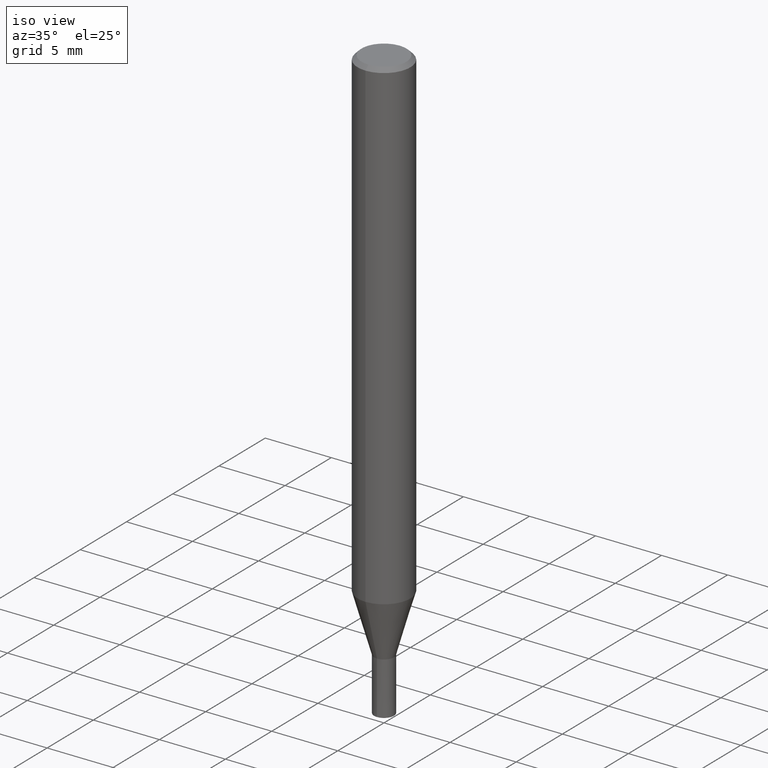
[diagram: clean part render]
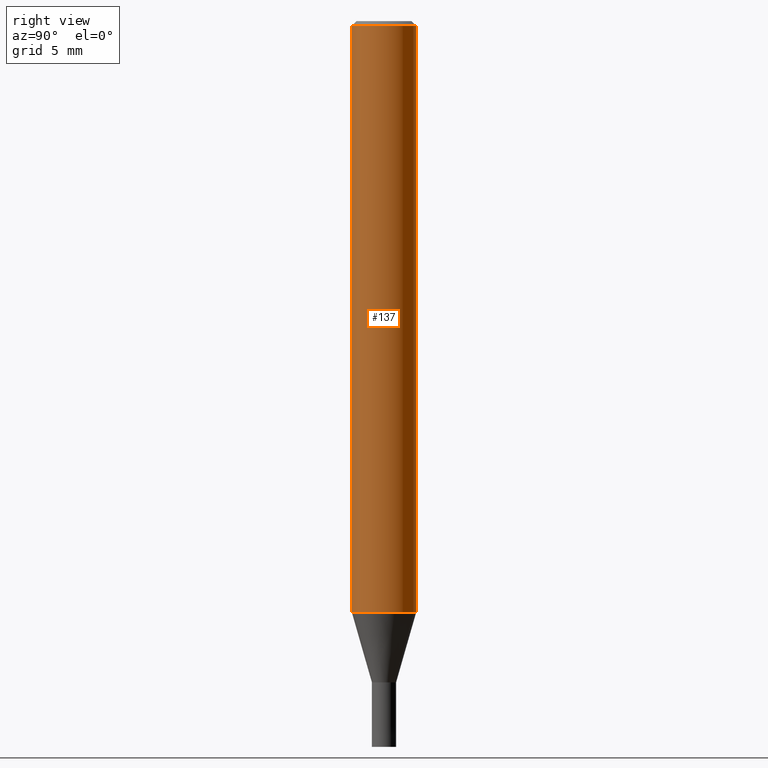
[diagram: tour spotlight — one face highlighted and labeled with its STEP entity id]
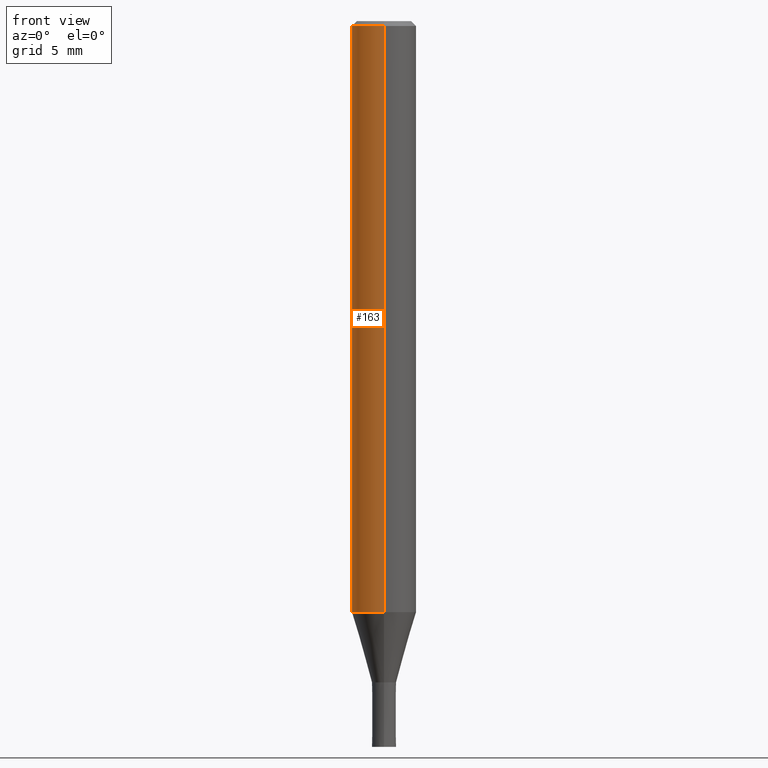
[diagram: tour spotlight — one face highlighted and labeled with its STEP entity id]
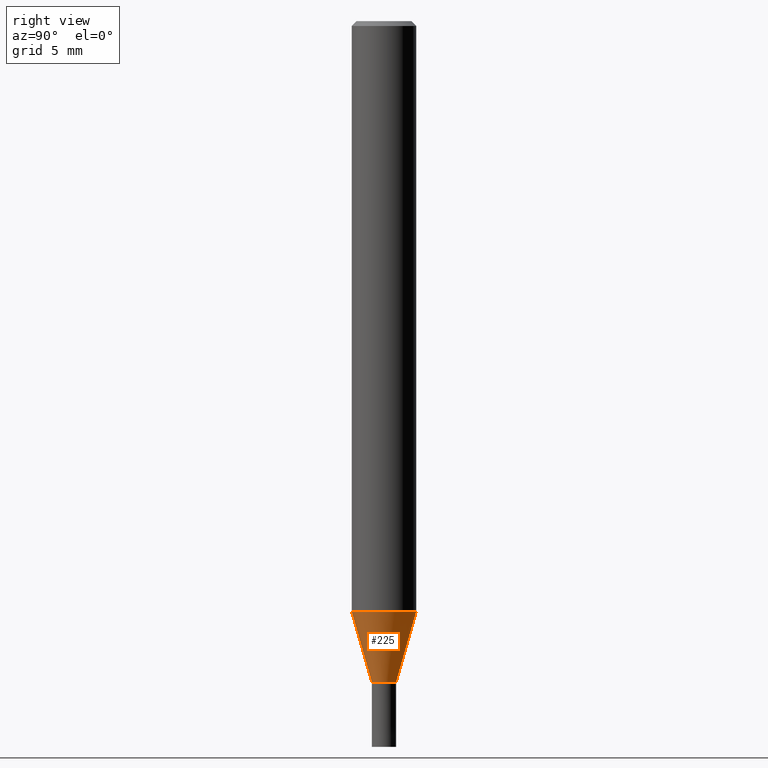
[diagram: tour spotlight — one face highlighted and labeled with its STEP entity id]
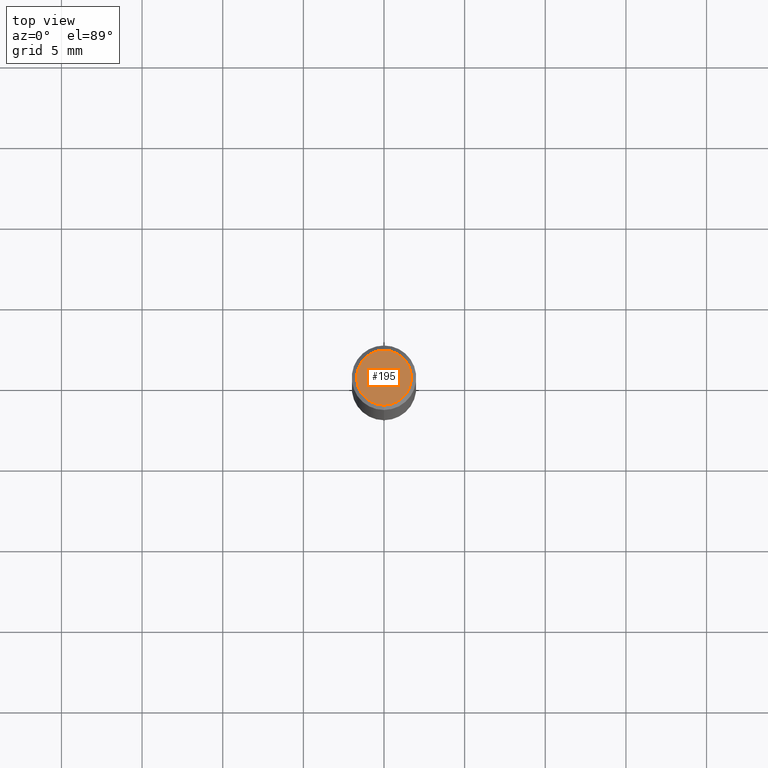
[diagram: tour spotlight — one face highlighted and labeled with its STEP entity id]
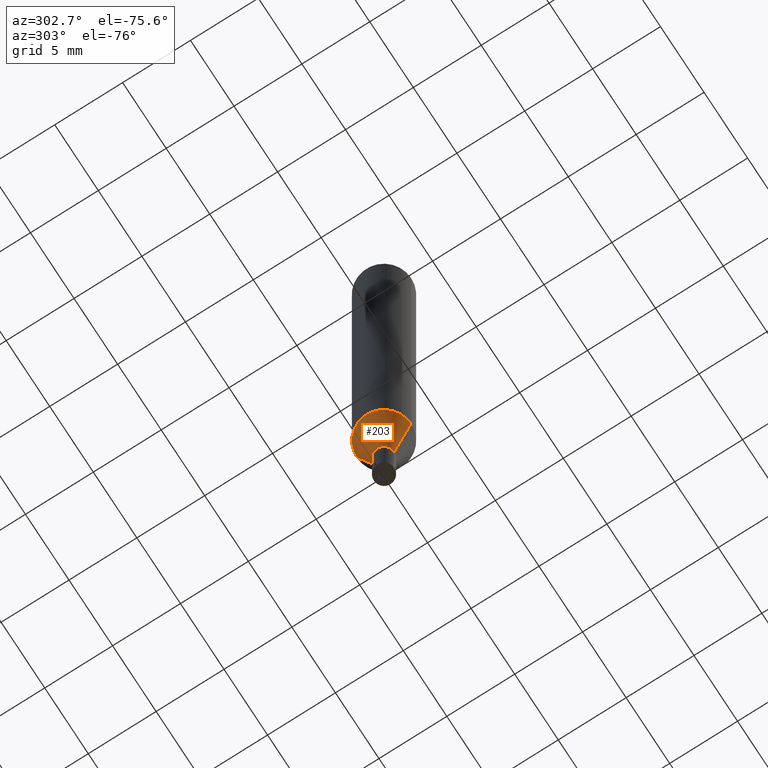
[diagram: tour spotlight — one face highlighted and labeled with its STEP entity id]
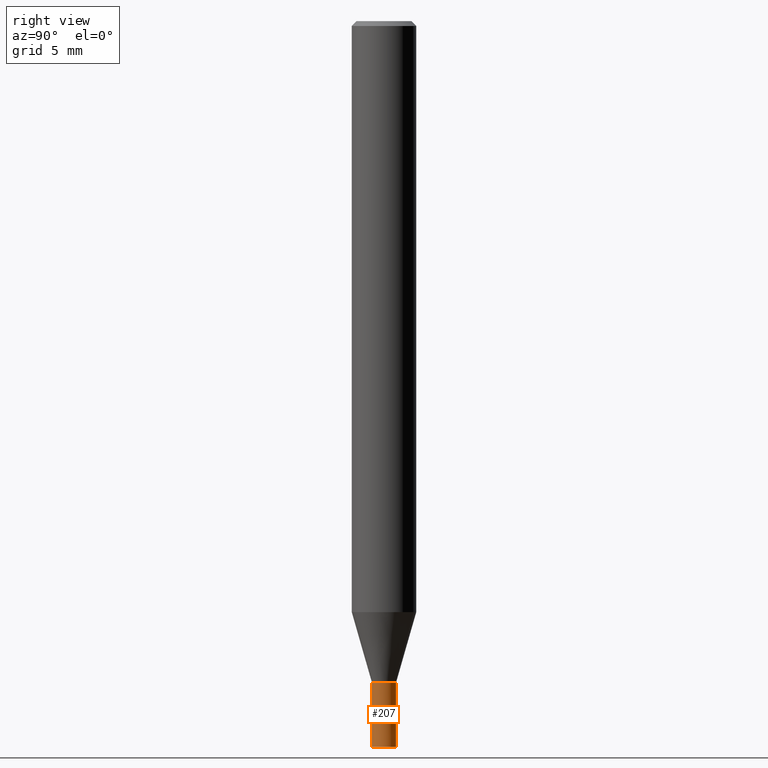
[diagram: tour spotlight — one face highlighted and labeled with its STEP entity id]
A machine part: a face-by-face anatomy tour. The part has 18 B-rep faces; the first image is the clean iso view, then the 6 largest visible faces are spotlighted one at a time (largest first), each with its STEP entity span.

Face 1 — right view, entity #137. In plain terms, the highlighted cylindrical surface (edge-blend (fillet) strip) has radius 2 mm, axis along (-0, -0, 1).
Definition (entity closure, byte-faithful):
#115=VERTEX_POINT('',#286);
#119=VERTEX_POINT('',#290);
#135=VERTEX_POINT('',#311);
#137=ADVANCED_FACE('',(#313),#314,.T.);
#143=EDGE_CURVE('',#135,#179,#321,.T.);
#169=EDGE_CURVE('',#119,#135,#351,.T.);
#179=VERTEX_POINT('',#362);
#183=EDGE_CURVE('',#119,#115,#366,.T.);
#191=EDGE_CURVE('',#179,#115,#374,.T.);
#286=CARTESIAN_POINT('',(2.44921270764475E-016,-2.0,-0.299999999999997));
#290=CARTESIAN_POINT('',(0.0,2.0,-0.299999999999997));
#311=CARTESIAN_POINT('',(0.0,2.0,-36.641));
#313=FACE_OUTER_BOUND('',#505,.T.);
#314=CYLINDRICAL_SURFACE('',#506,2.0);
#321=CIRCLE('',#515,2.0);
#351=LINE('',#553,#554);
#362=CARTESIAN_POINT('',(2.44921270764475E-016,-2.0,-36.641));
#366=CIRCLE('',#575,2.0);
#374=LINE('',#585,#586);
#505=EDGE_LOOP('',(#725,#726,#727,#728));
#506=AXIS2_PLACEMENT_3D('',#729,#730,#731);
#515=AXIS2_PLACEMENT_3D('',#743,#744,#745);
#553=CARTESIAN_POINT('',(-2.44921270764475E-016,2.0,-18.4705));
#554=VECTOR('',#780,1.0);
#575=AXIS2_PLACEMENT_3D('',#799,#800,#801);
#585=CARTESIAN_POINT('',(2.44921270764475E-016,-2.0,-18.4705));
#586=VECTOR('',#805,1.0);
#725=ORIENTED_EDGE('',*,*,#169,.F.);
#726=ORIENTED_EDGE('',*,*,#183,.T.);
#727=ORIENTED_EDGE('',*,*,#191,.F.);
#728=ORIENTED_EDGE('',*,*,#143,.F.);
#729=CARTESIAN_POINT('',(0.0,0.0,-18.4705));
#730=DIRECTION('',(-0.0,-0.0,1.0));
#731=DIRECTION('',(0.0,1.0,0.0));
#743=CARTESIAN_POINT('',(0.0,0.0,-36.641));
#744=DIRECTION('',(0.0,0.0,-1.0));
#745=DIRECTION('',(0.0,1.0,0.0));
#780=DIRECTION('',(0.0,0.0,-1.0));
#799=CARTESIAN_POINT('',(0.0,0.0,-0.299999999999997));
#800=DIRECTION('',(0.0,0.0,-1.0));
#801=DIRECTION('',(0.0,1.0,0.0));
#805=DIRECTION('',(-0.0,-0.0,1.0));

Face 2 — front view, entity #163. In plain terms, the highlighted cylindrical surface (edge-blend (fillet) strip) has radius 2 mm, axis along (-0, -0, 1).
Definition (entity closure, byte-faithful):
#115=VERTEX_POINT('',#286);
#119=VERTEX_POINT('',#290);
#135=VERTEX_POINT('',#311);
#147=EDGE_CURVE('',#179,#135,#325,.T.);
#163=ADVANCED_FACE('',(#343),#344,.T.);
#169=EDGE_CURVE('',#119,#135,#351,.T.);
#179=VERTEX_POINT('',#362);
#191=EDGE_CURVE('',#179,#115,#374,.T.);
#193=EDGE_CURVE('',#115,#119,#376,.T.);
#286=CARTESIAN_POINT('',(2.44921270764475E-016,-2.0,-0.299999999999997));
#290=CARTESIAN_POINT('',(0.0,2.0,-0.299999999999997));
#311=CARTESIAN_POINT('',(0.0,2.0,-36.641));
#325=CIRCLE('',#520,2.0);
#343=FACE_OUTER_BOUND('',#542,.T.);
#344=CYLINDRICAL_SURFACE('',#543,2.0);
#351=LINE('',#553,#554);
#362=CARTESIAN_POINT('',(2.44921270764475E-016,-2.0,-36.641));
#374=LINE('',#585,#586);
#376=CIRCLE('',#589,2.0);
#520=AXIS2_PLACEMENT_3D('',#746,#747,#748);
#542=EDGE_LOOP('',(#764,#765,#766,#767));
#543=AXIS2_PLACEMENT_3D('',#768,#769,#770);
#553=CARTESIAN_POINT('',(-2.44921270764475E-016,2.0,-18.4705));
#554=VECTOR('',#780,1.0);
#585=CARTESIAN_POINT('',(2.44921270764475E-016,-2.0,-18.4705));
#586=VECTOR('',#805,1.0);
#589=AXIS2_PLACEMENT_3D('',#806,#807,#808);
#746=CARTESIAN_POINT('',(0.0,0.0,-36.641));
#747=DIRECTION('',(0.0,0.0,-1.0));
#748=DIRECTION('',(0.0,1.0,0.0));
#764=ORIENTED_EDGE('',*,*,#169,.T.);
#765=ORIENTED_EDGE('',*,*,#147,.F.);
#766=ORIENTED_EDGE('',*,*,#191,.T.);
#767=ORIENTED_EDGE('',*,*,#193,.T.);
#768=CARTESIAN_POINT('',(0.0,0.0,-18.4705));
#769=DIRECTION('',(-0.0,-0.0,1.0));
#770=DIRECTION('',(0.0,1.0,0.0));
#780=DIRECTION('',(0.0,0.0,-1.0));
#805=DIRECTION('',(-0.0,-0.0,1.0));
#806=CARTESIAN_POINT('',(0.0,0.0,-0.299999999999997));
#807=DIRECTION('',(0.0,0.0,-1.0));
#808=DIRECTION('',(0.0,1.0,0.0));

Face 3 — right view, entity #225. In plain terms, the highlighted conical surface has half-angle 16.001 deg.
Definition (entity closure, byte-faithful):
#145=VERTEX_POINT('',#323);
#161=VERTEX_POINT('',#341);
#165=EDGE_CURVE('',#161,#241,#346,.T.);
#217=EDGE_CURVE('',#145,#245,#403,.T.);
#219=EDGE_CURVE('',#245,#161,#405,.T.);
#225=ADVANCED_FACE('',(#411),#412,.T.);
#241=VERTEX_POINT('',#431);
#245=VERTEX_POINT('',#435);
#257=EDGE_CURVE('',#145,#241,#450,.T.);
#323=CARTESIAN_POINT('',(0.0,1.99995,-36.641));
#341=CARTESIAN_POINT('',(9.18393535049092E-017,-0.74995,-41.0));
#346=LINE('',#546,#547);
#403=LINE('',#619,#620);
#405=CIRCLE('',#623,0.74995);
#411=FACE_OUTER_BOUND('',#631,.T.);
#412=CONICAL_SURFACE('',#632,1.37495,0.279268973819818);
#431=CARTESIAN_POINT('',(2.44915147732706E-016,-1.99995,-36.641));
#435=CARTESIAN_POINT('',(0.0,0.74995,-41.0));
#450=CIRCLE('',#677,1.99995);
#546=CARTESIAN_POINT('',(1.68377250618808E-016,-1.37495,-38.8205));
#547=VECTOR('',#771,1.0);
#619=CARTESIAN_POINT('',(-1.68377250618808E-016,1.37495,-38.8205));
#620=VECTOR('',#841,1.0);
#623=AXIS2_PLACEMENT_3D('',#842,#843,#844);
#631=EDGE_LOOP('',(#847,#848,#849,#850));
#632=AXIS2_PLACEMENT_3D('',#851,#852,#853);
#677=AXIS2_PLACEMENT_3D('',#899,#900,#901);
#771=DIRECTION('',(3.375664374138E-017,-0.27565301809855,0.961257204713265));
#841=DIRECTION('',(3.375664374138E-017,-0.27565301809855,-0.961257204713265));
#842=CARTESIAN_POINT('',(0.0,0.0,-41.0));
#843=DIRECTION('',(0.0,0.0,-1.0));
#844=DIRECTION('',(0.0,1.0,0.0));
#847=ORIENTED_EDGE('',*,*,#217,.F.);
#848=ORIENTED_EDGE('',*,*,#257,.T.);
#849=ORIENTED_EDGE('',*,*,#165,.F.);
#850=ORIENTED_EDGE('',*,*,#219,.F.);
#851=CARTESIAN_POINT('',(0.0,0.0,-38.8205));
#852=DIRECTION('',(-0.0,-0.0,1.0));
#853=DIRECTION('',(0.0,1.0,0.0));
#899=CARTESIAN_POINT('',(0.0,0.0,-36.641));
#900=DIRECTION('',(0.0,0.0,-1.0));
#901=DIRECTION('',(0.0,1.0,0.0));

Face 4 — top view, entity #195. In plain terms, the highlighted planar face has unit normal (-0, 0, 1).
Definition (entity closure, byte-faithful):
#127=VERTEX_POINT('',#300);
#173=EDGE_CURVE('',#127,#251,#355,.T.);
#195=ADVANCED_FACE('',(#378),#379,.T.);
#215=EDGE_CURVE('',#251,#127,#401,.T.);
#251=VERTEX_POINT('',#444);
#300=CARTESIAN_POINT('',(0.0,1.7,0.0));
#355=CIRCLE('',#560,1.7);
#378=FACE_OUTER_BOUND('',#591,.T.);
#379=PLANE('',#592);
#401=CIRCLE('',#616,1.7);
#444=CARTESIAN_POINT('',(2.08183080149804E-016,-1.7,0.0));
#560=AXIS2_PLACEMENT_3D('',#784,#785,#786);
#591=EDGE_LOOP('',(#810,#811));
#592=AXIS2_PLACEMENT_3D('',#812,#813,#814);
#616=AXIS2_PLACEMENT_3D('',#838,#839,#840);
#784=CARTESIAN_POINT('',(0.0,0.0,0.0));
#785=DIRECTION('',(0.0,0.0,-1.0));
#786=DIRECTION('',(0.0,1.0,0.0));
#810=ORIENTED_EDGE('',*,*,#173,.F.);
#811=ORIENTED_EDGE('',*,*,#215,.F.);
#812=CARTESIAN_POINT('',(0.0,0.85,0.0));
#813=DIRECTION('',(-0.0,0.0,1.0));
#814=DIRECTION('',(0.0,-1.0,0.0));
#838=CARTESIAN_POINT('',(0.0,0.0,0.0));
#839=DIRECTION('',(0.0,0.0,-1.0));
#840=DIRECTION('',(0.0,1.0,0.0));

Face 5 — auxiliary view, entity #203. In plain terms, the highlighted conical surface has half-angle 16.001 deg.
Definition (entity closure, byte-faithful):
#145=VERTEX_POINT('',#323);
#161=VERTEX_POINT('',#341);
#165=EDGE_CURVE('',#161,#241,#346,.T.);
#203=ADVANCED_FACE('',(#387),#388,.T.);
#211=EDGE_CURVE('',#241,#145,#397,.T.);
#217=EDGE_CURVE('',#145,#245,#403,.T.);
#235=EDGE_CURVE('',#161,#245,#422,.T.);
#241=VERTEX_POINT('',#431);
#245=VERTEX_POINT('',#435);
#323=CARTESIAN_POINT('',(0.0,1.99995,-36.641));
#341=CARTESIAN_POINT('',(9.18393535049092E-017,-0.74995,-41.0));
#346=LINE('',#546,#547);
#387=FACE_OUTER_BOUND('',#600,.T.);
#388=CONICAL_SURFACE('',#601,1.37495,0.279268973819818);
#397=CIRCLE('',#611,1.99995);
#403=LINE('',#619,#620);
#422=CIRCLE('',#646,0.74995);
#431=CARTESIAN_POINT('',(2.44915147732706E-016,-1.99995,-36.641));
#435=CARTESIAN_POINT('',(0.0,0.74995,-41.0));
#546=CARTESIAN_POINT('',(1.68377250618808E-016,-1.37495,-38.8205));
#547=VECTOR('',#771,1.0);
#600=EDGE_LOOP('',(#816,#817,#818,#819));
#601=AXIS2_PLACEMENT_3D('',#820,#821,#822);
#611=AXIS2_PLACEMENT_3D('',#835,#836,#837);
#619=CARTESIAN_POINT('',(-1.68377250618808E-016,1.37495,-38.8205));
#620=VECTOR('',#841,1.0);
#646=AXIS2_PLACEMENT_3D('',#863,#864,#865);
#771=DIRECTION('',(3.375664374138E-017,-0.27565301809855,0.961257204713265));
#816=ORIENTED_EDGE('',*,*,#217,.T.);
#817=ORIENTED_EDGE('',*,*,#235,.F.);
#818=ORIENTED_EDGE('',*,*,#165,.T.);
#819=ORIENTED_EDGE('',*,*,#211,.T.);
#820=CARTESIAN_POINT('',(0.0,0.0,-38.8205));
#821=DIRECTION('',(-0.0,-0.0,1.0));
#822=DIRECTION('',(0.0,1.0,0.0));
#835=CARTESIAN_POINT('',(0.0,0.0,-36.641));
#836=DIRECTION('',(0.0,0.0,-1.0));
#837=DIRECTION('',(0.0,1.0,0.0));
#841=DIRECTION('',(3.375664374138E-017,-0.27565301809855,-0.961257204713265));
#863=CARTESIAN_POINT('',(0.0,0.0,-41.0));
#864=DIRECTION('',(0.0,0.0,-1.0));
#865=DIRECTION('',(0.0,1.0,0.0));

Face 6 — right view, entity #207. In plain terms, the highlighted conical surface has half-angle 0.001 deg.
Definition (entity closure, byte-faithful):
#129=VERTEX_POINT('',#302);
#153=EDGE_CURVE('',#185,#213,#333,.T.);
#171=EDGE_CURVE('',#185,#129,#353,.T.);
#175=EDGE_CURVE('',#199,#129,#357,.T.);
#185=VERTEX_POINT('',#368);
#199=VERTEX_POINT('',#383);
#207=ADVANCED_FACE('',(#392),#393,.T.);
#213=VERTEX_POINT('',#399);
#229=EDGE_CURVE('',#213,#199,#416,.T.);
#302=CARTESIAN_POINT('',(9.18332304731401E-017,-0.7499,-41.0));
#333=LINE('',#530,#531);
#353=CIRCLE('',#557,0.7499);
#357=LINE('',#563,#564);
#368=CARTESIAN_POINT('',(0.0,0.7499,-41.0));
#383=CARTESIAN_POINT('',(9.18454765366783E-017,-0.75,-45.0));
#392=FACE_OUTER_BOUND('',#604,.T.);
#393=CONICAL_SURFACE('',#605,0.74995,2.49999999947889E-005);
#399=CARTESIAN_POINT('',(0.0,0.75,-45.0));
#416=CIRCLE('',#638,0.75);
#530=CARTESIAN_POINT('',(-9.18393535049092E-017,0.74995,-43.0));
#531=VECTOR('',#760,1.0);
#557=AXIS2_PLACEMENT_3D('',#781,#782,#783);
#563=CARTESIAN_POINT('',(9.18393535049092E-017,-0.74995,-43.0));
#564=VECTOR('',#787,1.0);
#604=EDGE_LOOP('',(#825,#826,#827,#828));
#605=AXIS2_PLACEMENT_3D('',#829,#830,#831);
#638=AXIS2_PLACEMENT_3D('',#857,#858,#859);
#760=DIRECTION('',(-3.06151588359888E-021,2.49999999921847E-005,-0.9999999996875));
#781=CARTESIAN_POINT('',(0.0,0.0,-41.0));
#782=DIRECTION('',(0.0,0.0,-1.0));
#783=DIRECTION('',(0.0,1.0,0.0));
#787=DIRECTION('',(-3.06151588359888E-021,2.49999999921847E-005,0.9999999996875));
#825=ORIENTED_EDGE('',*,*,#153,.F.);
#826=ORIENTED_EDGE('',*,*,#171,.T.);
#827=ORIENTED_EDGE('',*,*,#175,.F.);
#828=ORIENTED_EDGE('',*,*,#229,.F.);
#829=CARTESIAN_POINT('',(0.0,0.0,-43.0));
#830=DIRECTION('',(0.0,-0.0,-1.0));
#831=DIRECTION('',(0.0,1.0,0.0));
#857=CARTESIAN_POINT('',(0.0,0.0,-45.0));
#858=DIRECTION('',(0.0,0.0,-1.0));
#859=DIRECTION('',(0.0,1.0,0.0));